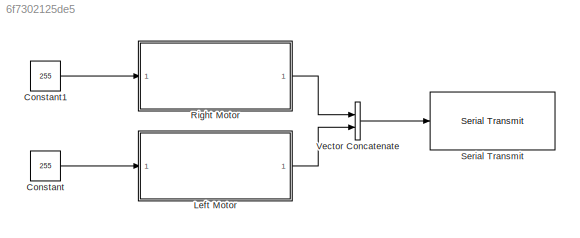
MODEL slx_6f7302125de5
KIND model
CONFIG AbsTol = auto
CONFIG EnableMultiTasking = on
CONFIG FixedStep = .1
CONFIG MaxStep = auto
CONFIG MinStep = auto
CONFIG RelTol = 1e-3
CONFIG SampleTimeConstraint = Unconstrained
CONFIG Solver = FixedStepDiscrete
CONFIG SolverName = FixedStepDiscrete
CONFIG StartTime = 0.0
CONFIG StopTime = 10.0
BLOCK [Constant] Constant
  Value = 255
BLOCK [Constant] Constant1
  Value = 255
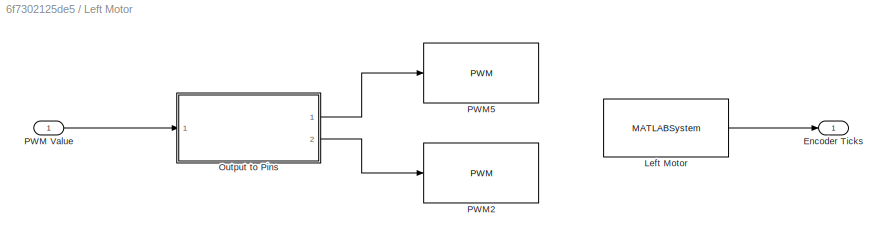
BLOCK [SubSystem] Left Motor
  Ports = [1, 1]
  RequestExecContextInheritance = off
BLOCK [Outport] Left Motor/Encoder Ticks
  IconDisplay = Port number
BLOCK [MATLABSystem] Left Motor/Left Motor
  MaskDisplay = disp('Source');\nport_label('output',1,'ticks');
  MaskType = EncoderRead
  Ports = [0, 1]
  SampleTime = -1
  System = EncoderRead
  id = int8(0)
  pinA = int8(11)
  pinB = int8(10)
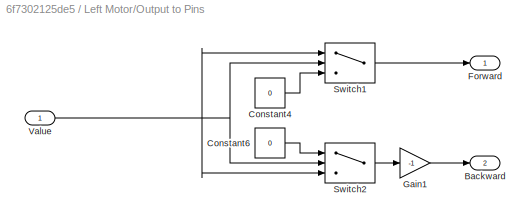
BLOCK [SubSystem] Left Motor/Output to Pins
  Ports = [1, 2]
  RequestExecContextInheritance = off
BLOCK [Outport] Left Motor/Output to Pins/Backward 
  IconDisplay = Port number
  Port = 2
BLOCK [Constant] Left Motor/Output to Pins/Constant4
  Value = 0
BLOCK [Constant] Left Motor/Output to Pins/Constant6
  Value = 0
BLOCK [Outport] Left Motor/Output to Pins/Forward
  IconDisplay = Port number
BLOCK [Gain] Left Motor/Output to Pins/Gain1
  Gain = -1
  OutDataTypeStr = Inherit: Inherit via internal rule
  ParamDataTypeStr = Inherit: Inherit via internal rule
  SaturateOnIntegerOverflow = off
BLOCK [Switch] Left Motor/Output to Pins/Switch1
  Criteria = u2 > Threshold
  InputSameDT = off
  SaturateOnIntegerOverflow = off
BLOCK [Switch] Left Motor/Output to Pins/Switch2
  Criteria = u2 > Threshold
  InputSameDT = off
  SaturateOnIntegerOverflow = off
BLOCK [Inport] Left Motor/Output to Pins/Value
  IconDisplay = Port number
BLOCK [Inport] Left Motor/PWM Value
  IconDisplay = Port number
BLOCK [Reference] Left Motor/PWM2  REF=arduinolib/PWM
  Ports = [1]
  SourceBlock = arduinolib/PWM
  SourceProductBaseCode = ARDUINO
  SourceProductName = Simulink Support Package for Arduino Hardware
  SourceType = Arduino PWM
BLOCK [Reference] Left Motor/PWM5  REF=arduinolib/PWM
  Ports = [1]
  SourceBlock = arduinolib/PWM
  SourceProductBaseCode = ARDUINO
  SourceProductName = Simulink Support Package for Arduino Hardware
  SourceType = Arduino PWM
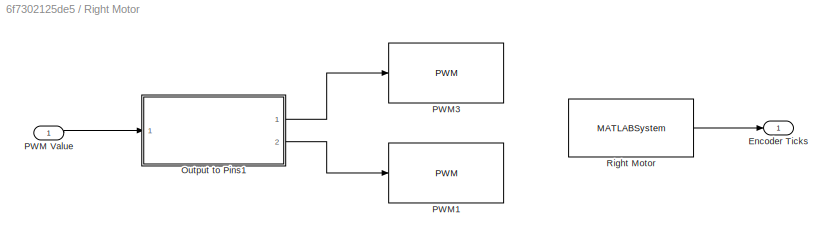
BLOCK [SubSystem] Right Motor
  Ports = [1, 1]
  RequestExecContextInheritance = off
BLOCK [Outport] Right Motor/Encoder Ticks
  IconDisplay = Port number
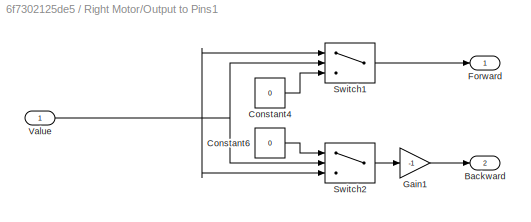
BLOCK [SubSystem] Right Motor/Output to Pins1
  Ports = [1, 2]
  RequestExecContextInheritance = off
BLOCK [Outport] Right Motor/Output to Pins1/Backward 
  IconDisplay = Port number
  Port = 2
BLOCK [Constant] Right Motor/Output to Pins1/Constant4
  Value = 0
BLOCK [Constant] Right Motor/Output to Pins1/Constant6
  Value = 0
BLOCK [Outport] Right Motor/Output to Pins1/Forward
  IconDisplay = Port number
BLOCK [Gain] Right Motor/Output to Pins1/Gain1
  Gain = -1
  OutDataTypeStr = Inherit: Inherit via internal rule
  ParamDataTypeStr = Inherit: Inherit via internal rule
  SaturateOnIntegerOverflow = off
BLOCK [Switch] Right Motor/Output to Pins1/Switch1
  Criteria = u2 > Threshold
  InputSameDT = off
  SaturateOnIntegerOverflow = off
BLOCK [Switch] Right Motor/Output to Pins1/Switch2
  Criteria = u2 > Threshold
  InputSameDT = off
  SaturateOnIntegerOverflow = off
BLOCK [Inport] Right Motor/Output to Pins1/Value
  IconDisplay = Port number
BLOCK [Inport] Right Motor/PWM Value
  IconDisplay = Port number
BLOCK [Reference] Right Motor/PWM1  REF=arduinolib/PWM
  Ports = [1]
  SourceBlock = arduinolib/PWM
  SourceProductBaseCode = ARDUINO
  SourceProductName = Simulink Support Package for Arduino Hardware
  SourceType = Arduino PWM
BLOCK [Reference] Right Motor/PWM3  REF=arduinolib/PWM
  Ports = [1]
  SourceBlock = arduinolib/PWM
  SourceProductBaseCode = ARDUINO
  SourceProductName = Simulink Support Package for Arduino Hardware
  SourceType = Arduino PWM
BLOCK [MATLABSystem] Right Motor/Right Motor
  MaskDisplay = disp('Source');\nport_label('output',1,'ticks');
  MaskType = EncoderRead
  Ports = [0, 1]
  SampleTime = -1
  System = EncoderRead
  id = int8(1)
  pinA = int8(13)
  pinB = int8(12)
BLOCK [Reference] Serial Transmit  REF=arduinolib/Serial Transmit
  Ports = [1]
  SourceBlock = arduinolib/Serial Transmit
  SourceProductBaseCode = ARDUINO
  SourceProductName = Simulink Support Package for Arduino Hardware
  SourceType = Arduino Serial Transmit
BLOCK [Concatenate] Vector Concatenate
  Ports = [2, 1]
LINE Constant1:1 -> Right Motor:1
LINE Constant:1 -> Left Motor:1
LINE Left Motor/Left Motor:1 -> Left Motor/Encoder Ticks:1
LINE Left Motor/Output to Pins/Constant4:1 -> Left Motor/Output to Pins/Switch1:3
LINE Left Motor/Output to Pins/Constant6:1 -> Left Motor/Output to Pins/Switch2:1
LINE Left Motor/Output to Pins/Gain1:1 -> Left Motor/Output to Pins/Backward :1
LINE Left Motor/Output to Pins/Switch1:1 -> Left Motor/Output to Pins/Forward:1
LINE Left Motor/Output to Pins/Switch2:1 -> Left Motor/Output to Pins/Gain1:1
NET Left Motor/Output to Pins/Value:1 -> Left Motor/Output to Pins/Switch1:1, Left Motor/Output to Pins/Switch1:2, Left Motor/Output to Pins/Switch2:2, Left Motor/Output to Pins/Switch2:3
LINE Left Motor/Output to Pins:1 -> Left Motor/PWM5:1
LINE Left Motor/Output to Pins:2 -> Left Motor/PWM2:1
LINE Left Motor/PWM Value:1 -> Left Motor/Output to Pins:1
LINE Left Motor:1 -> Vector Concatenate:2
LINE Right Motor/Output to Pins1/Constant4:1 -> Right Motor/Output to Pins1/Switch1:3
LINE Right Motor/Output to Pins1/Constant6:1 -> Right Motor/Output to Pins1/Switch2:1
LINE Right Motor/Output to Pins1/Gain1:1 -> Right Motor/Output to Pins1/Backward :1
LINE Right Motor/Output to Pins1/Switch1:1 -> Right Motor/Output to Pins1/Forward:1
LINE Right Motor/Output to Pins1/Switch2:1 -> Right Motor/Output to Pins1/Gain1:1
NET Right Motor/Output to Pins1/Value:1 -> Right Motor/Output to Pins1/Switch1:1, Right Motor/Output to Pins1/Switch1:2, Right Motor/Output to Pins1/Switch2:2, Right Motor/Output to Pins1/Switch2:3
LINE Right Motor/Output to Pins1:1 -> Right Motor/PWM3:1
LINE Right Motor/Output to Pins1:2 -> Right Motor/PWM1:1
LINE Right Motor/PWM Value:1 -> Right Motor/Output to Pins1:1
LINE Right Motor/Right Motor:1 -> Right Motor/Encoder Ticks:1
LINE Right Motor:1 -> Vector Concatenate:1
LINE Vector Concatenate:1 -> Serial Transmit:1
note: NET lines group one-source signal fan-out (src -> all destinations, sorted); 1:1 wires keep LINE
